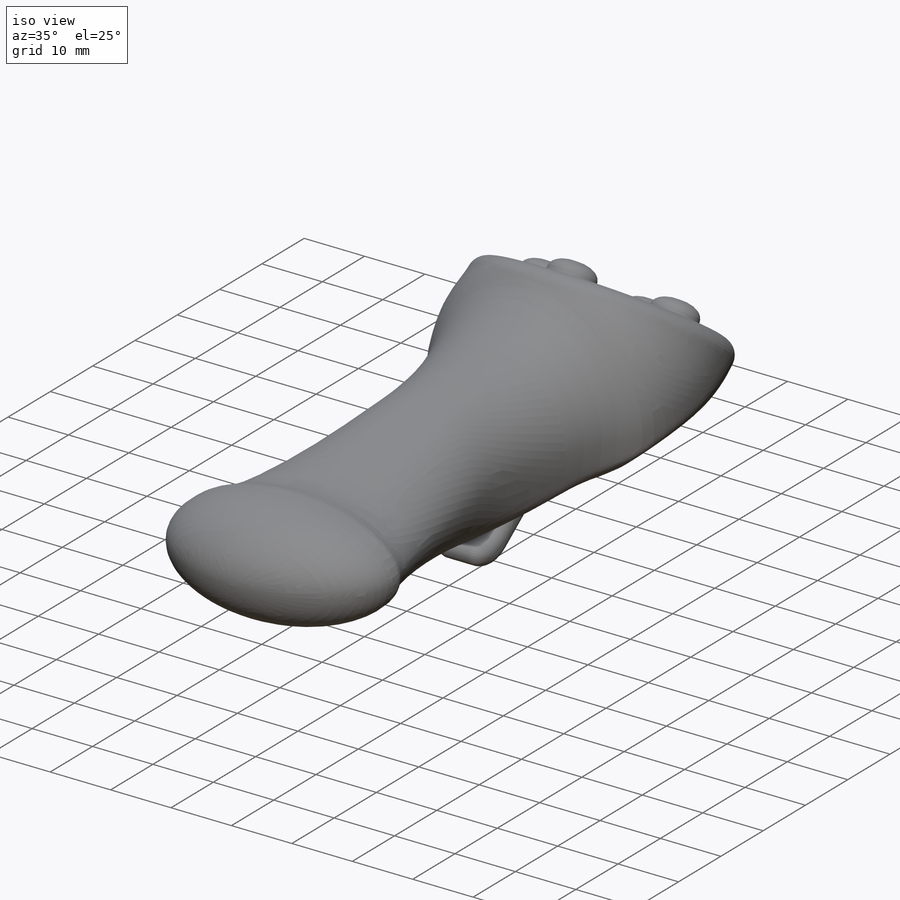
[diagram: iso view]
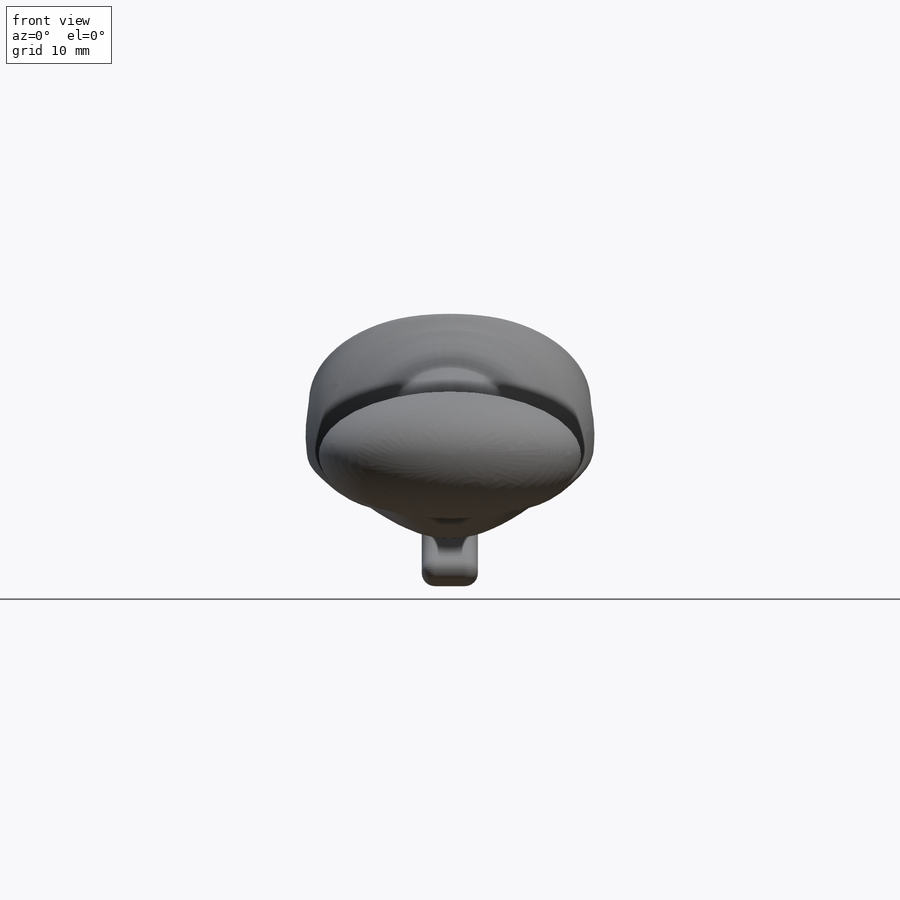
[diagram: front view]
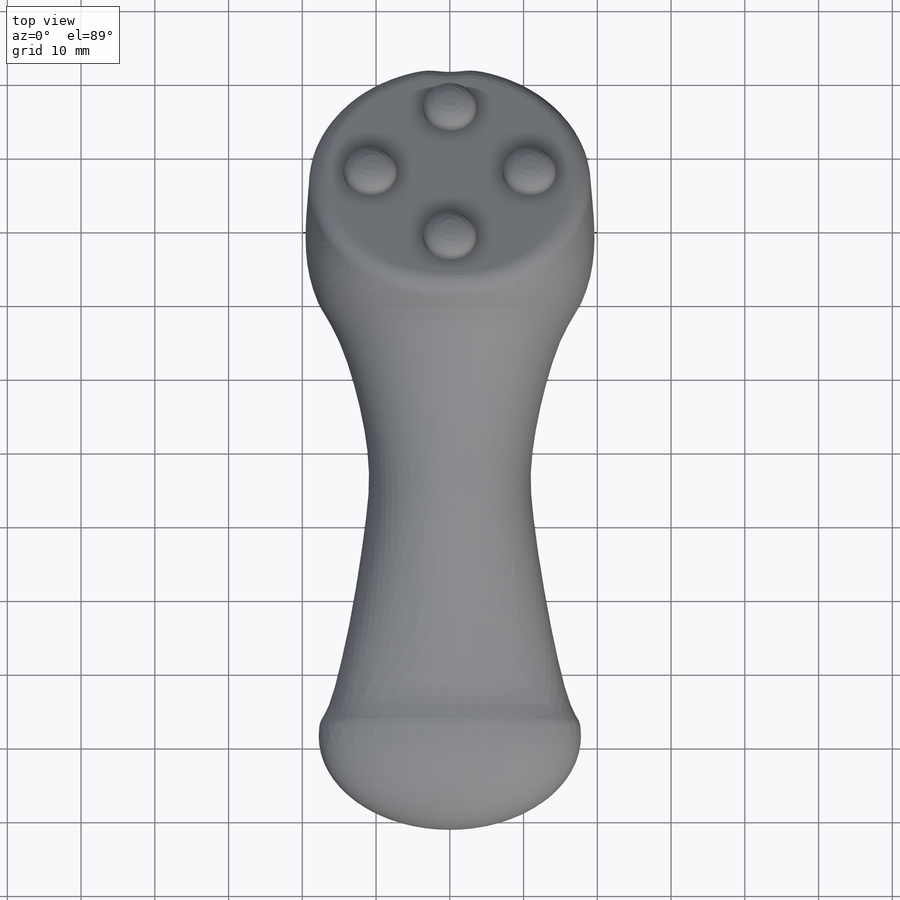
[diagram: top view]
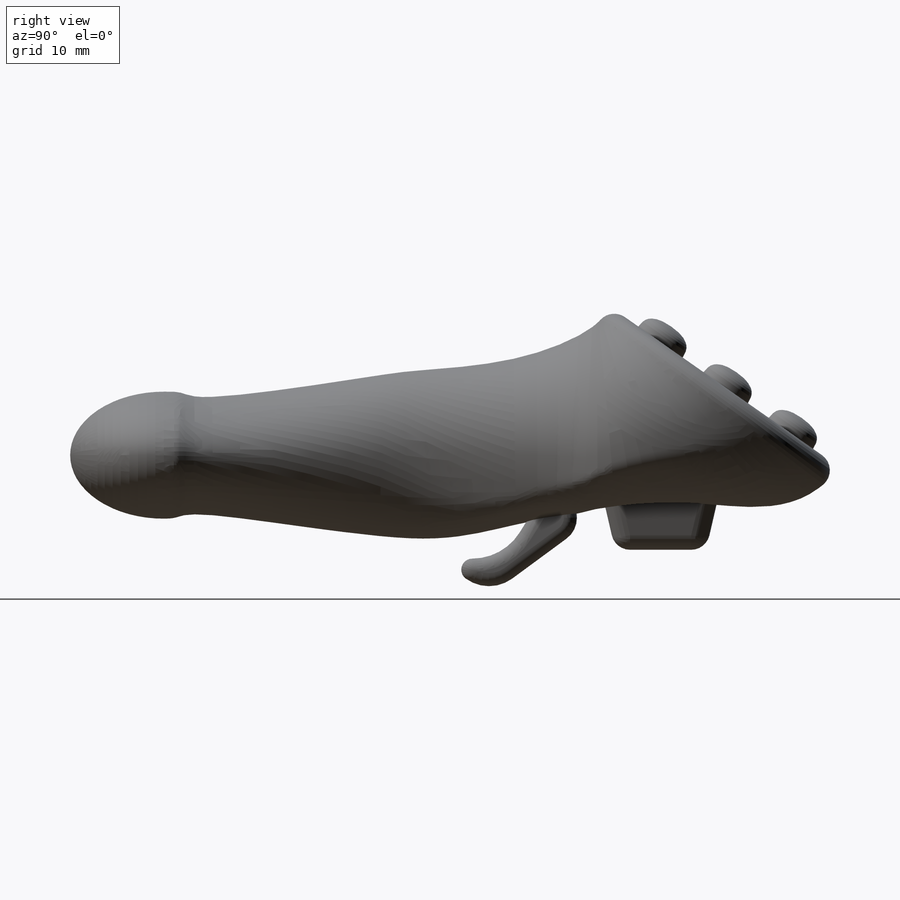
[diagram: right view]
SOLIDWORKS PART (.sldprt)
format: sldprt  version: not decoded by parser v0  size: 658,432 bytes
history: native  units: mm
features: sketch x17, plane x8, fillet x3, dome x2, extrude x2, material x1, revolve x1 + 1 further entry (+12 scaffold rows collapsed)
feature tree (47):
  scaffold x12  (default folders/planes/origin — collapsed)
  material  "Material <not specified>"
  sketch  "Sketch1"  dims[D1=35.56mm D2=2.54mm]
  plane  "Plane1"
  plane  "Plane2"  Offset=17.586084mm
  sketch  "Sketch2"  dims[D1=38.1mm]
  plane  "Plane3"  Offset=27.211543mm
  sketch  "Sketch3"
  plane  "Plane4"  Offset=31.389782mm
  plane  "Plane5"  Offset=19.780373mm
  sketch  "Sketch5"  dims[D1=5.08mm]
  sketch  "Sketch4"  dims[D1=~8.611383mm]
  plane  "Plane6"  Offset=3.784954mm
  sketch  "Sketch9"
  sketch  "Sketch7"
  sketch  "Sketch8"
  sketch  "Sketch2<6>"
  sketch  "Sketch1<6>"
  sketch  "Sketch5<5>"
  sketch  "Sketch3<6>"
  sketch  "Sketch4<6>"
  dome  "Dome1"
  dome  "Dome3"
  sketch  "Sketch10"  dims[D1=21.59mm D2=21.59mm]
  plane  "Plane7"
  sketch  "Sketch11"
  revolve  "Revolve1"  Angle=360deg
  "Sketch-Pattern1"
  fillet  "Fillet1"  Radius=2.54mm
  plane  "Plane8"  Offset=5.207332mm
  sketch  "Sketch12"  dims[D1=~15.851332mm]
  extrude  "Boss-Extrude1"  Depth=7.62mm
  sketch  "Sketch13"
  extrude  "Boss-Extrude2"  Depth=7.62mm
  fillet  "Fillet2"  Radius=2.54mm
  fillet  "Fillet3"  Radius=1.778mm
decode coverage: 12 of 25 modeling features carry decoded parameters; 1 rows unclassified (native names shown)
note: ~ marks probable driven/reference dimensions
note: suppression state not decoded; provenance and decode notes live in map.json
